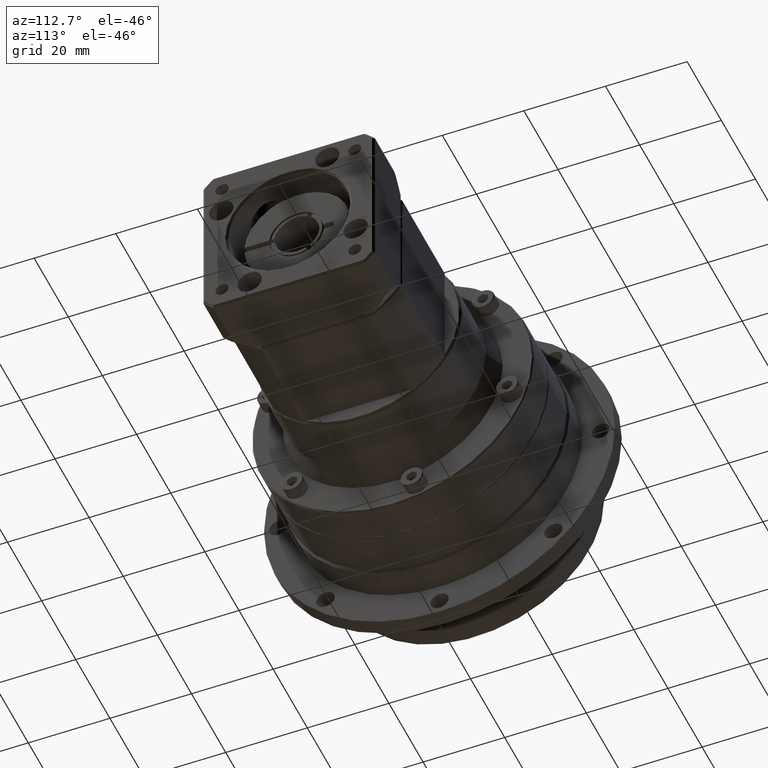
[diagram: clean part render]
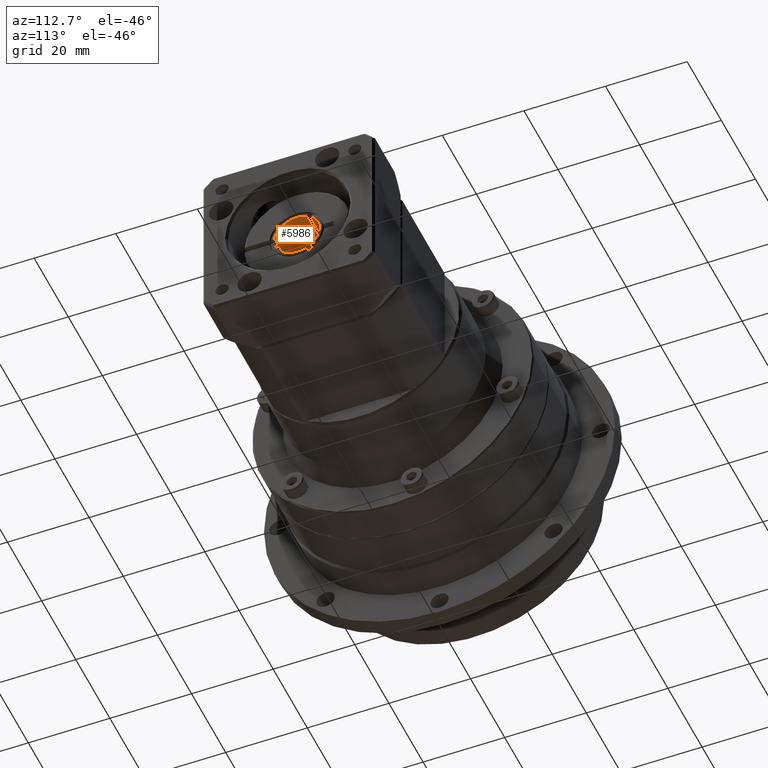
[diagram: same view with one face highlighted and labeled with its STEP entity id]
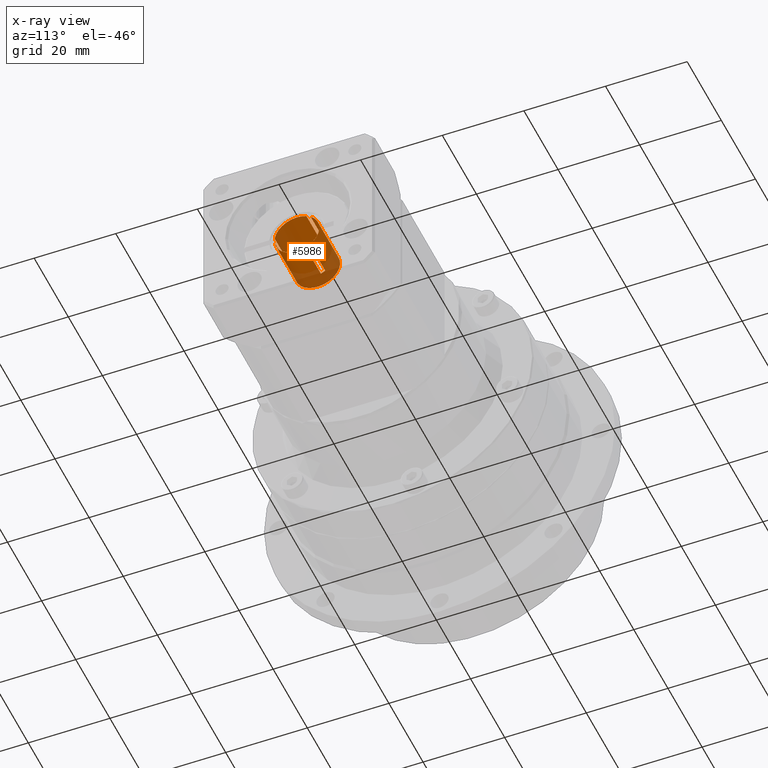
[diagram: x-ray of the same camera — body ghosted, the highlighted face saturated]
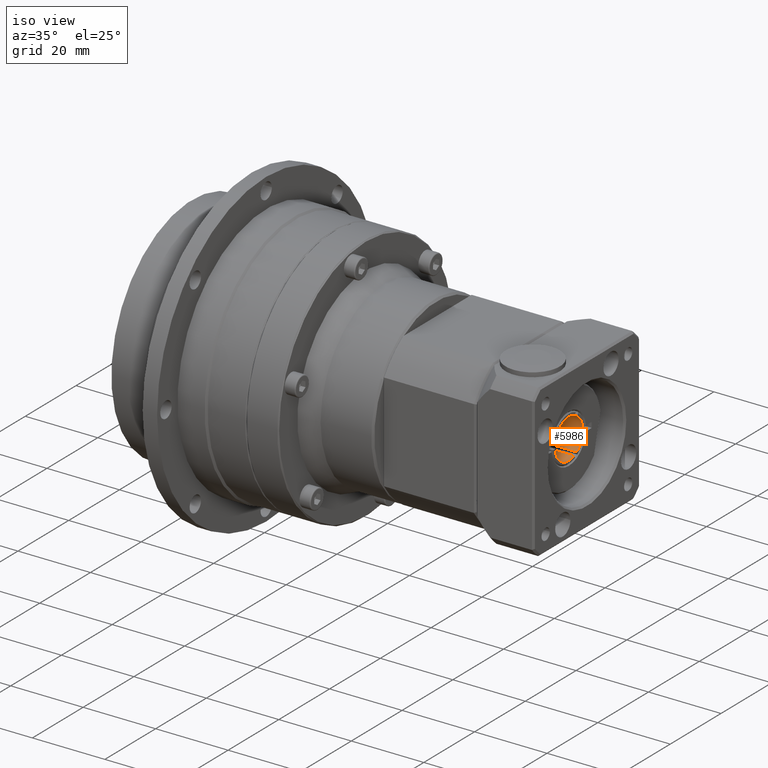
[diagram: same view with one face highlighted and labeled with its STEP entity id]
A machine part, auxiliary view. The second image highlights one B-rep face of the part: STEP entity #5986.
The next image is the same camera in x-ray: the body ghosted, the highlighted face saturated — about 26% of this face is hidden behind the body in this view.
A second angle (iso view) of the same face is appended — the face is thin or edge-on in the first view.
In plain terms, the highlighted cylindrical surface (bore or boss wall) has radius 5.5 mm, axis along (1, -0, 0).
Its self-contained STEP definition (entity closure, byte-faithful):
#318=LINE('',#9378,#579);
#325=LINE('',#9404,#586);
#328=LINE('',#9414,#589);
#331=LINE('',#9423,#592);
#334=LINE('',#9436,#595);
#335=LINE('',#9440,#596);
#579=VECTOR('',#7401,9.);
#586=VECTOR('',#7422,9.);
#589=VECTOR('',#7427,9.);
#592=VECTOR('',#7432,9.);
#595=VECTOR('',#7441,9.);
#596=VECTOR('',#7444,9.);
#1011=FACE_BOUND('',#1757,.T.);
#1305=FACE_OUTER_BOUND('',#1756,.T.);
#1756=EDGE_LOOP('',(#4280));
#1757=EDGE_LOOP('',(#4281,#4282,#4283,#4284,#4285,#4286,#4287,#4288,#4289,
#4290,#4291,#4292));
#2430=CIRCLE('',#6474,5.5);
#2432=CIRCLE('',#6477,5.5);
#2434=CIRCLE('',#6483,5.5);
#2435=CIRCLE('',#6484,5.5);
#2436=CIRCLE('',#6485,5.5);
#2437=CIRCLE('',#6486,5.5);
#2438=CIRCLE('',#6487,5.5);
#2821=VERTEX_POINT('',#9376);
#2822=VERTEX_POINT('',#9377);
#2825=VERTEX_POINT('',#9388);
#2826=VERTEX_POINT('',#9389);
#2829=VERTEX_POINT('',#9397);
#2831=VERTEX_POINT('',#9403);
#2834=VERTEX_POINT('',#9413);
#2836=VERTEX_POINT('',#9422);
#2838=VERTEX_POINT('',#9431);
#2839=VERTEX_POINT('',#9433);
#2840=VERTEX_POINT('',#9435);
#2841=VERTEX_POINT('',#9437);
#2842=VERTEX_POINT('',#9439);
#3410=EDGE_CURVE('',#2821,#2822,#318,.T.);
#3415=EDGE_CURVE('',#2825,#2826,#2430,.T.);
#3419=EDGE_CURVE('',#2829,#2821,#2432,.T.);
#3422=EDGE_CURVE('',#2826,#2831,#325,.T.);
#3426=EDGE_CURVE('',#2834,#2829,#328,.T.);
#3430=EDGE_CURVE('',#2836,#2825,#331,.T.);
#3434=EDGE_CURVE('',#2838,#2838,#2434,.T.);
#3435=EDGE_CURVE('',#2822,#2839,#2435,.T.);
#3436=EDGE_CURVE('',#2839,#2840,#334,.T.);
#3437=EDGE_CURVE('',#2840,#2841,#2436,.T.);
#3438=EDGE_CURVE('',#2841,#2842,#335,.T.);
#3439=EDGE_CURVE('',#2842,#2836,#2437,.T.);
#3440=EDGE_CURVE('',#2831,#2834,#2438,.T.);
#4280=ORIENTED_EDGE('',*,*,#3434,.F.);
#4281=ORIENTED_EDGE('',*,*,#3426,.T.);
#4282=ORIENTED_EDGE('',*,*,#3419,.T.);
#4283=ORIENTED_EDGE('',*,*,#3410,.T.);
#4284=ORIENTED_EDGE('',*,*,#3435,.T.);
#4285=ORIENTED_EDGE('',*,*,#3436,.T.);
#4286=ORIENTED_EDGE('',*,*,#3437,.T.);
#4287=ORIENTED_EDGE('',*,*,#3438,.T.);
#4288=ORIENTED_EDGE('',*,*,#3439,.T.);
#4289=ORIENTED_EDGE('',*,*,#3430,.T.);
#4290=ORIENTED_EDGE('',*,*,#3415,.T.);
#4291=ORIENTED_EDGE('',*,*,#3422,.T.);
#4292=ORIENTED_EDGE('',*,*,#3440,.T.);
#5541=CYLINDRICAL_SURFACE('',#6482,5.5);
#5986=ADVANCED_FACE('',(#1305,#1011),#5541,.F.);
#6474=AXIS2_PLACEMENT_3D('',#9390,#7407,#7408);
#6477=AXIS2_PLACEMENT_3D('',#9398,#7415,#7416);
#6482=AXIS2_PLACEMENT_3D('',#9430,#7435,#7436);
#6483=AXIS2_PLACEMENT_3D('',#9432,#7437,#7438);
#6484=AXIS2_PLACEMENT_3D('',#9434,#7439,#7440);
#6485=AXIS2_PLACEMENT_3D('',#9438,#7442,#7443);
#6486=AXIS2_PLACEMENT_3D('',#9441,#7445,#7446);
#6487=AXIS2_PLACEMENT_3D('',#9442,#7447,#7448);
#7401=DIRECTION('',(1.,-1.60894202622356E-16,8.30373787299013E-16));
#7407=DIRECTION('center_axis',(1.,-1.7078089439743E-16,8.50811842144818E-16));
#7408=DIRECTION('ref_axis',(5.8083708218961E-16,0.854446098874984,-0.519540050542131));
#7415=DIRECTION('center_axis',(1.,-1.7078089439743E-16,8.50811842144818E-16));
#7416=DIRECTION('ref_axis',(5.8083708218961E-16,0.854446098874984,-0.519540050542131));
#7422=DIRECTION('',(1.,-1.60894202622356E-16,8.30373787299013E-16));
#7427=DIRECTION('',(-1.,1.60894202622356E-16,-8.30373787299013E-16));
#7432=DIRECTION('',(-1.,1.60894202622356E-16,-8.30373787299013E-16));
#7435=DIRECTION('center_axis',(1.,-1.60894202622356E-16,8.30373787299013E-16));
#7436=DIRECTION('ref_axis',(5.8083708218961E-16,0.854446098874984,-0.519540050542131));
#7437=DIRECTION('center_axis',(1.,-1.60894202622356E-16,8.30373787299013E-16));
#7438=DIRECTION('ref_axis',(6.25918661003333E-16,-0.519540050542131,-0.854446098874984));
#7439=DIRECTION('center_axis',(1.,-1.60894202622356E-16,8.30373787299013E-16));
#7440=DIRECTION('ref_axis',(6.25918661003333E-16,-0.519540050542131,-0.854446098874984));
#7441=DIRECTION('',(-1.,1.60894202622356E-16,-8.30373787299013E-16));
#7442=DIRECTION('center_axis',(1.,-1.58942297823443E-16,8.29186945063773E-16));
#7443=DIRECTION('ref_axis',(5.8083708218961E-16,0.854446098874984,-0.519540050542131));
#7444=DIRECTION('',(1.,-1.60894202622356E-16,8.30373787299013E-16));
#7445=DIRECTION('center_axis',(1.,-1.60894202622356E-16,8.30373787299013E-16));
#7446=DIRECTION('ref_axis',(6.25918661003333E-16,-0.519540050542131,-0.854446098874984));
#7447=DIRECTION('center_axis',(1.,-1.60894202622356E-16,8.30373787299013E-16));
#7448=DIRECTION('ref_axis',(6.25918661003333E-16,-0.519540050542131,-0.854446098874984));
#9376=CARTESIAN_POINT('',(74.4837605327069,-16.0986534592913,15.8742330674175));
#9377=CARTESIAN_POINT('',(83.4837605327069,-16.0986534592913,15.8742330674175));
#9378=CARTESIAN_POINT('',(77.4087605327069,-16.0986534592913,15.8742330674175));
#9388=CARTESIAN_POINT('',(74.4837605327069,-24.7024339249365,21.1057023711691));
#9389=CARTESIAN_POINT('',(74.4837605327069,-24.729688124075,19.9060119074955));
#9390=CARTESIAN_POINT('Origin',(74.4837605327069,-19.2502964923671,20.3816875810055));
#9397=CARTESIAN_POINT('',(74.4837605327069,-17.1512429770798,15.2979906643945));
#9398=CARTESIAN_POINT('Origin',(74.4837605327069,-19.2502964923671,20.3816875810055));
#9403=CARTESIAN_POINT('',(83.4837605327069,-24.729688124075,19.9060119074955));
#9404=CARTESIAN_POINT('',(77.4087605327069,-24.729688124075,19.9060119074955));
#9413=CARTESIAN_POINT('',(83.4837605327069,-17.1512429770798,15.2979906643945));
#9414=CARTESIAN_POINT('',(77.4087605327069,-17.1512429770798,15.2979906643945));
#9422=CARTESIAN_POINT('',(83.4837605327069,-24.7024339249365,21.1057023711691));
#9423=CARTESIAN_POINT('',(77.4087605327069,-24.7024339249365,21.1057023711691));
#9430=CARTESIAN_POINT('Origin',(77.4087605327069,-19.2502964923671,20.3816875810055));
#9431=CARTESIAN_POINT('',(71.3337605327069,-14.5508429485547,17.5242173030237));
#9432=CARTESIAN_POINT('Origin',(71.3337605327069,-19.2502964923671,20.3816875810055));
#9433=CARTESIAN_POINT('',(83.4837605327069,-15.8972125750851,24.7413697074528));
#9434=CARTESIAN_POINT('Origin',(83.4837605327069,-19.2502964923671,20.3816875810055));
#9435=CARTESIAN_POINT('',(74.4837605327069,-15.8972125750851,24.7413697074528));
#9436=CARTESIAN_POINT('',(77.4087605327069,-15.8972125750851,24.7413697074528));
#9437=CARTESIAN_POINT('',(74.4837605327069,-16.9225478937351,25.3648177681034));
#9438=CARTESIAN_POINT('Origin',(74.4837605327069,-19.2502964923671,20.3816875810055));
#9439=CARTESIAN_POINT('',(83.4837605327069,-16.9225478937351,25.3648177681034));
#9440=CARTESIAN_POINT('',(77.4087605327069,-16.9225478937351,25.3648177681034));
#9441=CARTESIAN_POINT('Origin',(83.4837605327069,-19.2502964923671,20.3816875810055));
#9442=CARTESIAN_POINT('Origin',(83.4837605327069,-19.2502964923671,20.3816875810055));